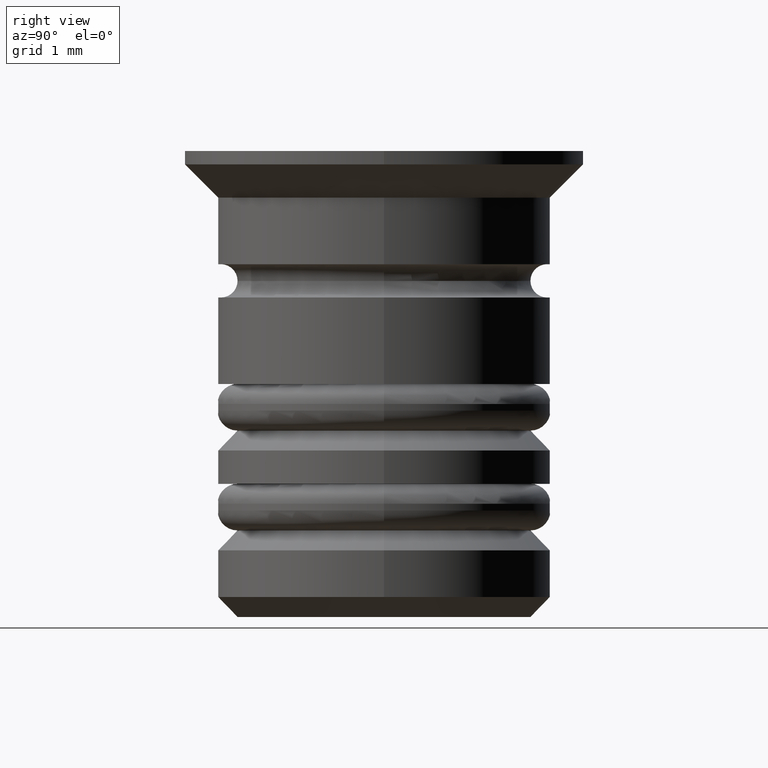
[diagram: clean part render]
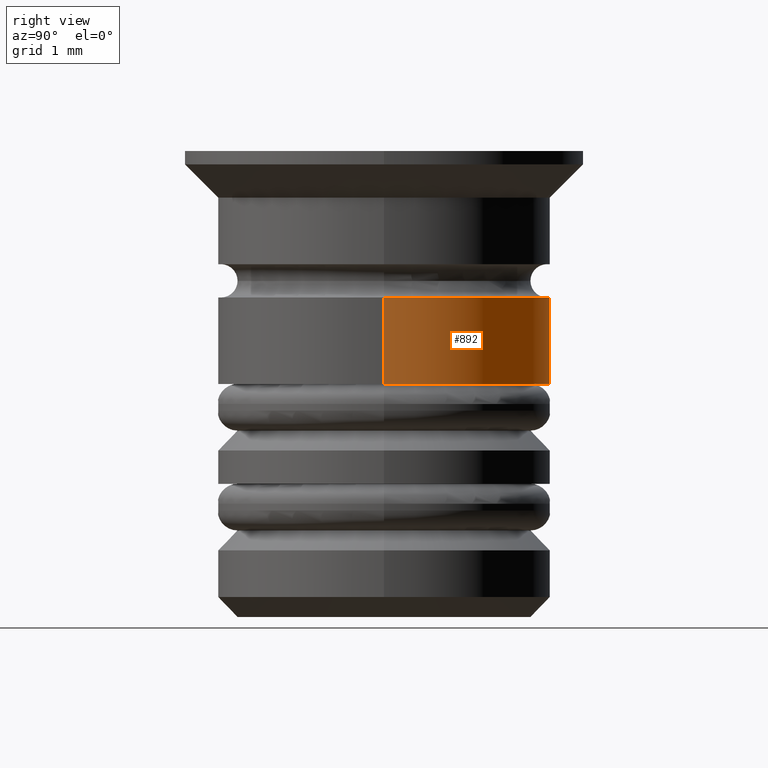
[diagram: same view with one face highlighted and labeled with its STEP entity id]
A machine part, right view. The second image highlights one B-rep face of the part: STEP entity #892.
In plain terms, the highlighted cylindrical surface (partial cylindrical patch) has radius 2.5 mm, axis along (-0, -0, 1).
Its self-contained STEP definition (entity closure, byte-faithful):
#50 = CARTESIAN_POINT ( 'NONE',  ( 2.500000000000000888, 0.000000000000000000, 0.000000000000000000 ) ) ;
#217 = LINE ( 'NONE', #50, #1308 ) ;
#257 = AXIS2_PLACEMENT_3D ( 'NONE', #627, #1461, #357 ) ;
#261 = CARTESIAN_POINT ( 'NONE',  ( 0.000000000000000000, 0.000000000000000000, -3.500000000000003997 ) ) ;
#278 = DIRECTION ( 'NONE',  ( 1.000000000000000000, 0.000000000000000000, 0.000000000000000000 ) ) ;
#357 = DIRECTION ( 'NONE',  ( 1.000000000000000000, 0.000000000000000000, 0.000000000000000000 ) ) ;
#466 = CIRCLE ( 'NONE', #257, 2.500000000000000888 ) ;
#490 = DIRECTION ( 'NONE',  ( 1.000000000000000000, 0.000000000000000000, 0.000000000000000000 ) ) ;
#583 = VERTEX_POINT ( 'NONE', #665 ) ;
#604 = ORIENTED_EDGE ( 'NONE', *, *, #1037, .F. ) ;
#627 = CARTESIAN_POINT ( 'NONE',  ( 0.000000000000000000, 0.000000000000000000, -2.200000000000000622 ) ) ;
#643 = CIRCLE ( 'NONE', #763, 2.500000000000000888 ) ;
#665 = CARTESIAN_POINT ( 'NONE',  ( 2.500000000000000888, 0.000000000000000000, -3.500000000000003997 ) ) ;
#680 = ORIENTED_EDGE ( 'NONE', *, *, #1802, .T. ) ;
#711 = CARTESIAN_POINT ( 'NONE',  ( -2.500000000000000888, 3.061616997868384127E-16, -3.500000000000003997 ) ) ;
#763 = AXIS2_PLACEMENT_3D ( 'NONE', #261, #1231, #278 ) ;
#791 = CARTESIAN_POINT ( 'NONE',  ( 2.500000000000000888, 0.000000000000000000, -2.200000000000000622 ) ) ;
#792 = DIRECTION ( 'NONE',  ( -0.000000000000000000, -0.000000000000000000, 1.000000000000000000 ) ) ;
#840 = EDGE_LOOP ( 'NONE', ( #680, #1701, #604, #1502 ) ) ;
#882 = EDGE_CURVE ( 'NONE', #583, #1063, #217, .T. ) ;
#892 = ADVANCED_FACE ( 'NONE', ( #1042 ), #1660, .T. ) ;
#893 = VERTEX_POINT ( 'NONE', #1048 ) ;
#1015 = EDGE_CURVE ( 'NONE', #1512, #893, #1756, .T. ) ;
#1037 = EDGE_CURVE ( 'NONE', #1063, #893, #466, .T. ) ;
#1042 = FACE_OUTER_BOUND ( 'NONE', #840, .T. ) ;
#1048 = CARTESIAN_POINT ( 'NONE',  ( -2.500000000000000888, 3.061616997868384127E-16, -2.200000000000000622 ) ) ;
#1063 = VERTEX_POINT ( 'NONE', #791 ) ;
#1064 = CARTESIAN_POINT ( 'NONE',  ( -2.500000000000000888, 3.061616997868384127E-16, 0.000000000000000000 ) ) ;
#1079 = VECTOR ( 'NONE', #792, 1000.000000000000000 ) ;
#1181 = DIRECTION ( 'NONE',  ( -0.000000000000000000, -0.000000000000000000, 1.000000000000000000 ) ) ;
#1231 = DIRECTION ( 'NONE',  ( -0.000000000000000000, -0.000000000000000000, 1.000000000000000000 ) ) ;
#1308 = VECTOR ( 'NONE', #1181, 1000.000000000000000 ) ;
#1461 = DIRECTION ( 'NONE',  ( -0.000000000000000000, -0.000000000000000000, 1.000000000000000000 ) ) ;
#1483 = AXIS2_PLACEMENT_3D ( 'NONE', #1522, #1753, #490 ) ;
#1502 = ORIENTED_EDGE ( 'NONE', *, *, #882, .F. ) ;
#1512 = VERTEX_POINT ( 'NONE', #711 ) ;
#1522 = CARTESIAN_POINT ( 'NONE',  ( 0.000000000000000000, 0.000000000000000000, 0.000000000000000000 ) ) ;
#1660 = CYLINDRICAL_SURFACE ( 'NONE', #1483, 2.500000000000000888 ) ;
#1701 = ORIENTED_EDGE ( 'NONE', *, *, #1015, .T. ) ;
#1753 = DIRECTION ( 'NONE',  ( -0.000000000000000000, -0.000000000000000000, 1.000000000000000000 ) ) ;
#1756 = LINE ( 'NONE', #1064, #1079 ) ;
#1802 = EDGE_CURVE ( 'NONE', #583, #1512, #643, .T. ) ;